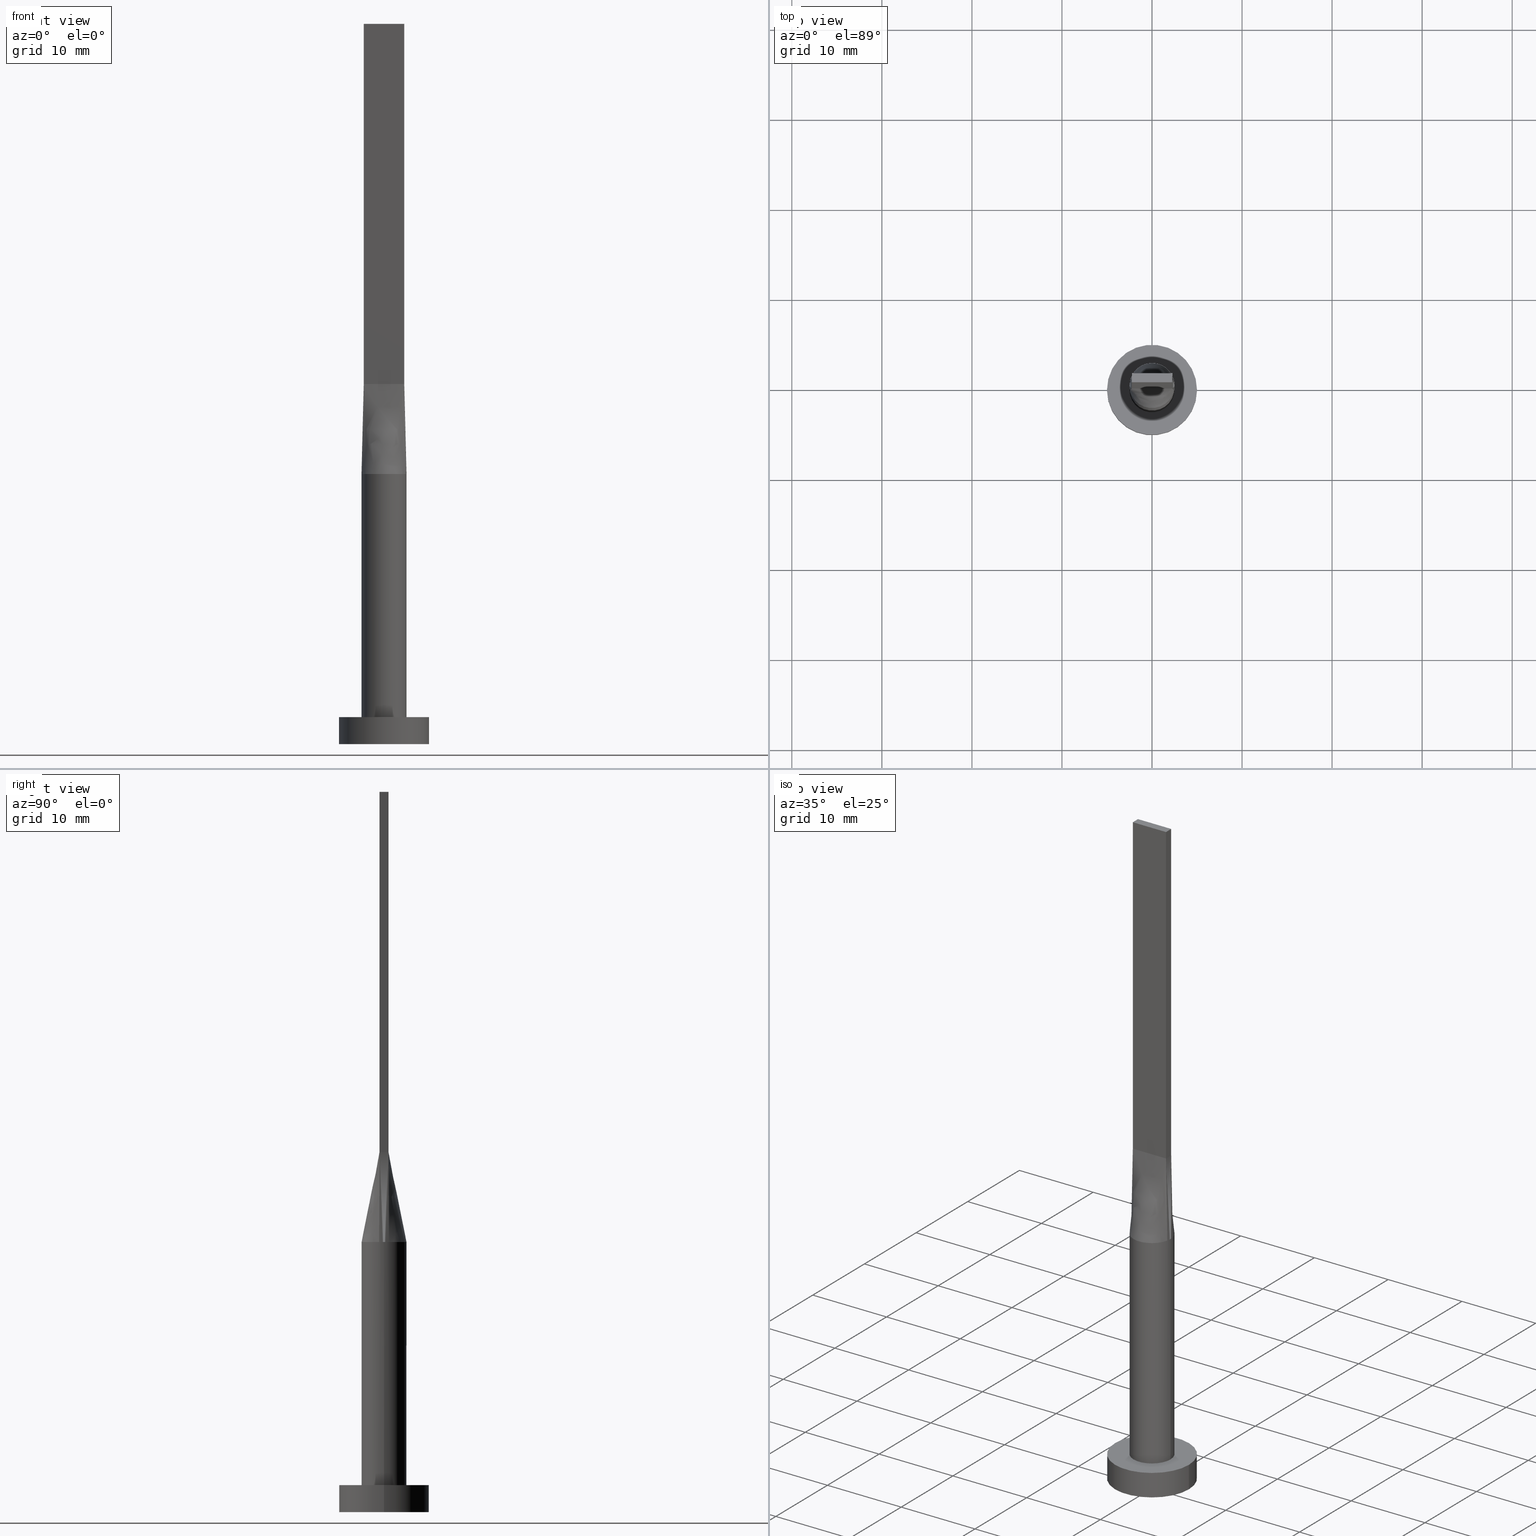
[diagram: canonical four-view strip — front | top / right | iso, engineering-drawing reading convention]
A machine part, canonical four-view strip (front | top / right | iso — engineering-drawing reading convention). The complete STEP part file that produces these views, byte-faithful:
ISO-10303-21;
HEADER;
FILE_DESCRIPTION (( 'STEP AP203' ),
    '1' );
FILE_NAME ('b24c.STEP',
    '2023-02-13T13:17:58',
    ( '' ),
    ( '' ),
    'SwSTEP 2.0',
    'SolidWorks 2019',
    '' );
FILE_SCHEMA (( 'CONFIG_CONTROL_DESIGN' ));
ENDSEC;

DATA;
#1 = ORIENTED_EDGE ( 'NONE', *, *, #549, .F. ) ;
#2 = APPROVAL_STATUS ( 'not_yet_approved' ) ;
#3 = FACE_OUTER_BOUND ( 'NONE', #515, .T. ) ;
#4 = VERTEX_POINT ( 'NONE', #160 ) ;
#5 = DIRECTION ( 'NONE',  ( 1.000000000000000000, 0.000000000000000000, 0.000000000000000000 ) ) ;
#6 = CIRCLE ( 'NONE', #432, 5.000000000000000000 ) ;
#7 = CARTESIAN_POINT ( 'NONE',  ( -2.093723281432891437, 1.388001797188529451, 30.00000000000000000 ) ) ;
#8 = DIRECTION ( 'NONE',  ( 1.000000000000000000, 0.000000000000000000, 0.000000000000000000 ) ) ;
#9 = LINE ( 'NONE', #227, #257 ) ;
#10 = CC_DESIGN_PERSON_AND_ORGANIZATION_ASSIGNMENT ( #574, #223, ( #136 ) ) ;
#11 = CARTESIAN_POINT ( 'NONE',  ( -2.323660390030918510, 0.9543733860570832173, 30.00000000000000000 ) ) ;
#12 = PERSON_AND_ORGANIZATION ( #285, #89 ) ;
#13 = VERTEX_POINT ( 'NONE', #199 ) ;
#14 = CARTESIAN_POINT ( 'NONE',  ( 2.250000000000000000, -0.4999999999999997780, 80.00000000000000000 ) ) ;
#15 = DIRECTION ( 'NONE',  ( 7.228014483236697048E-17, 1.000000000000000000, -0.000000000000000000 ) ) ;
#16 = EDGE_CURVE ( 'NONE', #337, #566, #354, .T. ) ;
#17 = FACE_OUTER_BOUND ( 'NONE', #269, .T. ) ;
#18 = DIRECTION ( 'NONE',  ( 0.000000000000000000, 0.000000000000000000, 1.000000000000000000 ) ) ;
#19 = ORIENTED_EDGE ( 'NONE', *, *, #192, .F. ) ;
#20 = CARTESIAN_POINT ( 'NONE',  ( -2.499291179871646840, -0.1829277781556729043, 30.00000000000000000 ) ) ;
#21 = ORIENTED_EDGE ( 'NONE', *, *, #166, .T. ) ;
#22 = EDGE_CURVE ( 'NONE', #280, #101, #412, .T. ) ;
#23 = VECTOR ( 'NONE', #171, 1000.000000000000000 ) ;
#24 = CARTESIAN_POINT ( 'NONE',  ( 2.323660390030918954, 0.9543733860570833283, 30.00000000000000711 ) ) ;
#25 = CARTESIAN_POINT ( 'NONE',  ( -2.323660390030918066, -0.9543733860570832173, 30.00000000000000711 ) ) ;
#26 = AXIS2_PLACEMENT_3D ( 'NONE', #518, #575, #121 ) ;
#27 = CIRCLE ( 'NONE', #383, 2.500000000000000000 ) ;
#28 = CARTESIAN_POINT ( 'NONE',  ( -2.345233825229940727, 0.5211630722733198162, 35.00000000000000000 ) ) ;
#29 = CARTESIAN_POINT ( 'NONE',  ( 0.000000000000000000, 0.000000000000000000, 3.000000000000000000 ) ) ;
#30 = CARTESIAN_POINT ( 'NONE',  ( -2.093723281432891881, -1.388001797188529007, 30.00000000000000000 ) ) ;
#31 = DIRECTION ( 'NONE',  ( 0.000000000000000000, 0.000000000000000000, 1.000000000000000000 ) ) ;
#32 = VECTOR ( 'NONE', #130, 1000.000000000000000 ) ;
#33 = DIRECTION ( 'NONE',  ( -0.000000000000000000, -0.000000000000000000, -1.000000000000000000 ) ) ;
#34 = EDGE_CURVE ( 'NONE', #195, #454, #550, .T. ) ;
#35 = DIRECTION ( 'NONE',  ( 0.000000000000000000, 0.000000000000000000, 1.000000000000000000 ) ) ;
#36 = CARTESIAN_POINT ( 'NONE',  ( -2.440467650459882343, 0.5423261445466395214, 30.00000000000000000 ) ) ;
#37 = CARTESIAN_POINT ( 'NONE',  ( 0.6674771052374466329, -2.430579781493059865, 29.99999999999999289 ) ) ;
#38 = MANIFOLD_SOLID_BREP ( 'P�idat vysunut�m5', #396 ) ;
#39 = FACE_OUTER_BOUND ( 'NONE', #414, .T. ) ;
#40 = CARTESIAN_POINT ( 'NONE',  ( -2.093723281432891437, 1.388001797188529451, 30.00000000000000000 ) ) ;
#41 = DATE_AND_TIME ( #537, #270 ) ;
#42 = CARTESIAN_POINT ( 'NONE',  ( 2.323660390030918954, 0.9543733860570833283, 30.00000000000000711 ) ) ;
#43 = ADVANCED_FACE ( 'NONE', ( #552 ), #221, .T. ) ;
#44 = CARTESIAN_POINT ( 'NONE',  ( 0.3749999999999998890, -0.4999999999999995559, 39.99999999999999289 ) ) ;
#45 = VECTOR ( 'NONE', #450, 1000.000000000000000 ) ;
#46 = ORIENTED_EDGE ( 'NONE', *, *, #111, .T. ) ;
#47 = PERSON_AND_ORGANIZATION_ROLE ( 'creator' ) ;
#48 = CARTESIAN_POINT ( 'NONE',  ( -0.9375000000000114353, 0.5000000000000002220, 39.99999999999999289 ) ) ;
#49 = SECURITY_CLASSIFICATION_LEVEL ( 'unclassified' ) ;
#50 = DIRECTION ( 'NONE',  ( -0.000000000000000000, -0.000000000000000000, -1.000000000000000000 ) ) ;
#51 = AXIS2_PLACEMENT_3D ( 'NONE', #509, #374, #418 ) ;
#52 = AXIS2_PLACEMENT_3D ( 'NONE', #370, #546, #152 ) ;
#53 = ORIENTED_EDGE ( 'NONE', *, *, #184, .F. ) ;
#54 = DIRECTION ( 'NONE',  ( 1.000000000000000000, 0.000000000000000000, 0.000000000000000000 ) ) ;
#55 = CC_DESIGN_PERSON_AND_ORGANIZATION_ASSIGNMENT ( #80, #75, ( #295 ) ) ;
#56 = DIRECTION ( 'NONE',  ( -0.01904314058352519351, -0.004231809018561117491, 0.9998097071888962795 ) ) ;
#57 = ORIENTED_EDGE ( 'NONE', *, *, #86, .T. ) ;
#58 = LINE ( 'NONE', #231, #399 ) ;
#59 = ORIENTED_EDGE ( 'NONE', *, *, #208, .T. ) ;
#60 = DIRECTION ( 'NONE',  ( 0.000000000000000000, 0.000000000000000000, 1.000000000000000000 ) ) ;
#61 = LOCAL_TIME ( 14, 17, 58.00000000000000000, #517 ) ;
#62 = APPROVAL_ROLE ( '' ) ;
#63 = EDGE_CURVE ( 'NONE', #320, #305, #124, .T. ) ;
#64 = ORIENTED_EDGE ( 'NONE', *, *, #233, .T. ) ;
#65 = CARTESIAN_POINT ( 'NONE',  ( 2.499645589935823420, 5.999196936655281332E-16, 30.00000000000000000 ) ) ;
#66 = ORIENTED_EDGE ( 'NONE', *, *, #361, .F. ) ;
#67 = CARTESIAN_POINT ( 'NONE',  ( -2.479683336734391563, 0.3658555563113465858, 30.00000000000000000 ) ) ;
#68 = ORIENTED_EDGE ( 'NONE', *, *, #279, .T. ) ;
#69 = CC_DESIGN_DATE_AND_TIME_ASSIGNMENT ( #297, #394, ( #421 ) ) ;
#70 = AXIS2_PLACEMENT_3D ( 'NONE', #300, #138, #310 ) ;
#71 = FACE_OUTER_BOUND ( 'NONE', #377, .T. ) ;
#72 = CIRCLE ( 'NONE', #572, 2.500000000000000000 ) ;
#73 = CARTESIAN_POINT ( 'NONE',  ( -2.396350003401058970, -0.7408555563113458087, 30.00000000000000355 ) ) ;
#74 = LINE ( 'NONE', #196, #203 ) ;
#75 = PERSON_AND_ORGANIZATION_ROLE ( 'creator' ) ;
#76 = CARTESIAN_POINT ( 'NONE',  ( 1.874999999999995115, 0.5000000000000002220, 39.99999999999999289 ) ) ;
#77 = VERTEX_POINT ( 'NONE', #127 ) ;
#78 = ORIENTED_EDGE ( 'NONE', *, *, #436, .T. ) ;
#79 = DIRECTION ( 'NONE',  ( 0.000000000000000000, 0.000000000000000000, 1.000000000000000000 ) ) ;
#80 = PERSON_AND_ORGANIZATION ( #285, #89 ) ;
#81 = EDGE_CURVE ( 'NONE', #305, #478, #314, .T. ) ;
#82 = ORIENTED_EDGE ( 'NONE', *, *, #569, .F. ) ;
#83 = CARTESIAN_POINT ( 'NONE',  ( -2.500000000000000000, 0.000000000000000000, 3.000000000000000000 ) ) ;
#84 = VECTOR ( 'NONE', #239, 1000.000000000000000 ) ;
#85 = ORIENTED_EDGE ( 'NONE', *, *, #224, .T. ) ;
#86 = EDGE_CURVE ( 'NONE', #222, #454, #485, .T. ) ;
#87 = CARTESIAN_POINT ( 'NONE',  ( -1.500000000000007327, 0.5000000000000002220, 39.99999999999999289 ) ) ;
#88 = VERTEX_POINT ( 'NONE', #477 ) ;
#89 = ORGANIZATION ( 'NEUR�EN�', 'NEUR�EN�', '' ) ;
#90 = CARTESIAN_POINT ( 'NONE',  ( 1.935644909179608186, 1.608159499248285051, 29.99999999999999645 ) ) ;
#91 = CARTESIAN_POINT ( 'NONE',  ( -2.500000000000000000, 0.000000000000000000, 30.00000000000000000 ) ) ;
#92 = CARTESIAN_POINT ( 'NONE',  ( 0.000000000000000000, 0.000000000000000000, 3.000000000000000000 ) ) ;
#93 = ADVANCED_FACE ( 'NONE', ( #433 ), #533, .T. ) ;
#94 = ORIENTED_EDGE ( 'NONE', *, *, #143, .F. ) ;
#95 = LINE ( 'NONE', #343, #299 ) ;
#96 = CARTESIAN_POINT ( 'NONE',  ( 2.250000000000000000, -0.4999999999999997780, 80.00000000000000000 ) ) ;
#97 =( LENGTH_UNIT ( ) NAMED_UNIT ( * ) SI_UNIT ( .MILLI., .METRE. ) );
#98 = DIRECTION ( 'NONE',  ( 0.000000000000000000, -0.000000000000000000, -1.000000000000000000 ) ) ;
#99 = B_SPLINE_SURFACE_WITH_KNOTS ( 'NONE', 3, 1, ( 
 ( #145, #311 ),
 ( #524, #169 ),
 ( #339, #294 ),
 ( #473, #424 ),
 ( #296, #404 ),
 ( #278, #241 ) ),
 .UNSPECIFIED., .F., .F., .F.,
 ( 4, 2, 4 ),
 ( 2, 2 ),
 ( 0.000000000000000000, 0.5000000000000000000, 1.000000000000000000 ),
 ( 0.000000000000000000, 1.000000000000000000 ),
 .UNSPECIFIED. ) ;
#100 = CARTESIAN_POINT ( 'NONE',  ( 0.000000000000000000, 0.000000000000000000, 0.000000000000000000 ) ) ;
#101 = VERTEX_POINT ( 'NONE', #109 ) ;
#102 = ADVANCED_FACE ( 'NONE', ( #71 ), #245, .T. ) ;
#103 = DIRECTION ( 'NONE',  ( -0.000000000000000000, -0.000000000000000000, -1.000000000000000000 ) ) ;
#104 = CARTESIAN_POINT ( 'NONE',  ( -2.250000000000000000, -0.4999999999999994449, 80.00000000000000000 ) ) ;
#105 = ORIENTED_EDGE ( 'NONE', *, *, #417, .T. ) ;
#106 = CARTESIAN_POINT ( 'NONE',  ( -2.440467650459881899, 0.5423261445466406316, 30.00000000000000000 ) ) ;
#107 = FACE_OUTER_BOUND ( 'NONE', #318, .T. ) ;
#108 = EDGE_LOOP ( 'NONE', ( #407, #179, #82, #243 ) ) ;
#109 = CARTESIAN_POINT ( 'NONE',  ( 2.249999999999999556, 0.5000000000000002220, 40.00000000000000000 ) ) ;
#110 = ORIENTED_EDGE ( 'NONE', *, *, #16, .T. ) ;
#111 = EDGE_CURVE ( 'NONE', #337, #445, #503, .T. ) ;
#112 = PERSON_AND_ORGANIZATION ( #285, #89 ) ;
#113 = ORIENTED_EDGE ( 'NONE', *, *, #330, .F. ) ;
#114 = CARTESIAN_POINT ( 'NONE',  ( 0.3749999999999862332, 0.5000000000000002220, 39.99999999999999289 ) ) ;
#115 = EDGE_LOOP ( 'NONE', ( #105, #85 ) ) ;
#116 = ADVANCED_BREP_SHAPE_REPRESENTATION ( 'b24c', ( #38, #155 ), #364 ) ;
#117 = CARTESIAN_POINT ( 'NONE',  ( -2.249999999999999556, 0.5000000000000002220, 80.00000000000000000 ) ) ;
#118 = VECTOR ( 'NONE', #172, 1000.000000000000000 ) ;
#119 = EDGE_CURVE ( 'NONE', #445, #216, #406, .T. ) ;
#120 = DATE_TIME_ROLE ( 'creation_date' ) ;
#121 = DIRECTION ( 'NONE',  ( 4.336808689942020201E-16, 1.000000000000000000, 0.000000000000000000 ) ) ;
#122 = CARTESIAN_POINT ( 'NONE',  ( 2.250000000000000000, -0.4999999999999997780, 80.00000000000000000 ) ) ;
#123 = APPLICATION_CONTEXT ( 'configuration controlled 3d designs of mechanical parts and assemblies' ) ;
#124 = CIRCLE ( 'NONE', #492, 2.500000000000000000 ) ;
#125 = DIRECTION ( 'NONE',  ( 1.000000000000000000, 0.000000000000000000, 0.000000000000000000 ) ) ;
#126 = LINE ( 'NONE', #298, #32 ) ;
#127 = CARTESIAN_POINT ( 'NONE',  ( -2.250000000000000000, -0.4999999999999994449, 80.00000000000000000 ) ) ;
#128 = ADVANCED_FACE ( 'NONE', ( #107 ), #134, .T. ) ;
#129 = CARTESIAN_POINT ( 'NONE',  ( 0.000000000000000000, 0.000000000000000000, 0.000000000000000000 ) ) ;
#130 = DIRECTION ( 'NONE',  ( -1.000000000000000000, -0.000000000000000000, -0.000000000000000000 ) ) ;
#131 = CARTESIAN_POINT ( 'NONE',  ( 2.093723281432890548, -1.388001797188530340, 29.99999999999999645 ) ) ;
#132 = ORIENTED_EDGE ( 'NONE', *, *, #166, .F. ) ;
#133 = CARTESIAN_POINT ( 'NONE',  ( -0.3342381693191151526, 2.499999999999999556, 30.00000000000000355 ) ) ;
#134 = B_SPLINE_SURFACE_WITH_KNOTS ( 'NONE', 3, 1, ( 
 ( #326, #162 ),
 ( #329, #508 ),
 ( #24, #76 ),
 ( #204, #558 ),
 ( #333, #512 ),
 ( #164, #416 ),
 ( #287, #207 ),
 ( #335, #114 ),
 ( #422, #263 ),
 ( #133, #348 ),
 ( #381, #170 ),
 ( #258, #306 ),
 ( #474, #48 ),
 ( #426, #341 ),
 ( #40, #87 ),
 ( #387, #522 ),
 ( #390, #392 ),
 ( #36, #214 ) ),
 .UNSPECIFIED., .F., .F., .F.,
 ( 4, 2, 2, 2, 2, 2, 2, 2, 4 ),
 ( 2, 2 ),
 ( 0.000000000000000000, 0.1249999999999999722, 0.2500000000000000000, 0.3750000000000000000, 0.5000000000000001110, 0.6250000000000001110, 0.7500000000000000000, 0.8750000000000000000, 1.000000000000000000 ),
 ( 0.000000000000000000, 1.000000000000000000 ),
 .UNSPECIFIED. ) ;
#135 = CARTESIAN_POINT ( 'NONE',  ( 2.396350003401058082, -0.7408555563113468079, 30.00000000000000000 ) ) ;
#136 = PRODUCT_DEFINITION_FORMATION_WITH_SPECIFIED_SOURCE ( 'LIBOVOLN�', '', #140, .NOT_KNOWN. ) ;
#137 = CARTESIAN_POINT ( 'NONE',  ( -1.260416918790968843, 2.182794756967428196, 29.99999999999999289 ) ) ;
#138 = DIRECTION ( 'NONE',  ( 0.000000000000000000, 0.000000000000000000, 1.000000000000000000 ) ) ;
#139 = ORIENTED_EDGE ( 'NONE', *, *, #63, .T. ) ;
#140 = PRODUCT ( 'b24c', 'b24c', '', ( #197 ) ) ;
#141 = CALENDAR_DATE ( 2023, 13, 2 ) ;
#142 = DIRECTION ( 'NONE',  ( 0.000000000000000000, -1.000000000000000000, 0.000000000000000000 ) ) ;
#143 = EDGE_CURVE ( 'NONE', #346, #445, #530, .T. ) ;
#144 = ORIENTED_EDGE ( 'NONE', *, *, #81, .F. ) ;
#145 = CARTESIAN_POINT ( 'NONE',  ( 2.440467650459881899, -0.5423261445466410757, 30.00000000000000000 ) ) ;
#146 = DIRECTION ( 'NONE',  ( 1.000000000000000000, -7.228014483236697048E-17, 0.000000000000000000 ) ) ;
#147 = EDGE_LOOP ( 'NONE', ( #132, #190 ) ) ;
#148 = VECTOR ( 'NONE', #33, 1000.000000000000000 ) ;
#149 = DIRECTION ( 'NONE',  ( -1.000000000000000000, 7.228014483236697048E-17, 0.000000000000000000 ) ) ;
#150 = CC_DESIGN_PERSON_AND_ORGANIZATION_ASSIGNMENT ( #434, #47, ( #136 ) ) ;
#151 = APPLICATION_PROTOCOL_DEFINITION ( 'international standard', 'config_control_design', 1994, #123 ) ;
#152 = DIRECTION ( 'NONE',  ( -1.000000000000000000, 0.000000000000000000, 0.000000000000000000 ) ) ;
#153 = LOCAL_TIME ( 14, 17, 58.00000000000000000, #181 ) ;
#154 = ORIENTED_EDGE ( 'NONE', *, *, #22, .F. ) ;
#155 = AXIS2_PLACEMENT_3D ( 'NONE', #100, #18, #363 ) ;
#156 = CARTESIAN_POINT ( 'NONE',  ( -2.250000000000000000, -0.4999999999999994449, 40.00000000000000000 ) ) ;
#157 = VECTOR ( 'NONE', #56, 1000.000000000000000 ) ;
#158 = DIRECTION ( 'NONE',  ( -4.336808689942017736E-16, 1.000000000000000000, -0.000000000000000000 ) ) ;
#159 = ADVANCED_FACE ( 'NONE', ( #303 ), #484, .F. ) ;
#160 = CARTESIAN_POINT ( 'NONE',  ( 2.500000000000000000, 3.061616997868383141E-16, 3.000000000000000000 ) ) ;
#161 = APPROVAL_DATE_TIME ( #458, #447 ) ;
#162 = CARTESIAN_POINT ( 'NONE',  ( 2.249999999999999556, 0.5000000000000002220, 40.00000000000000000 ) ) ;
#163 = CARTESIAN_POINT ( 'NONE',  ( -1.519400572660313919, -2.006070808634366820, 30.00000000000000355 ) ) ;
#164 = CARTESIAN_POINT ( 'NONE',  ( 1.519400572660313031, 2.006070808634367708, 30.00000000000000000 ) ) ;
#165 = ORIENTED_EDGE ( 'NONE', *, *, #260, .F. ) ;
#166 = EDGE_CURVE ( 'NONE', #454, #195, #455, .T. ) ;
#167 = LINE ( 'NONE', #91, #23 ) ;
#168 = ORIENTED_EDGE ( 'NONE', *, *, #34, .T. ) ;
#169 = CARTESIAN_POINT ( 'NONE',  ( 2.250000000000000000, -0.3333333333333333703, 39.99999999999999289 ) ) ;
#170 = CARTESIAN_POINT ( 'NONE',  ( -0.3750000000000138223, 0.5000000000000002220, 39.99999999999999289 ) ) ;
#171 = DIRECTION ( 'NONE',  ( -0.000000000000000000, -0.000000000000000000, -1.000000000000000000 ) ) ;
#172 = DIRECTION ( 'NONE',  ( -0.000000000000000000, -0.000000000000000000, -1.000000000000000000 ) ) ;
#173 = CC_DESIGN_PERSON_AND_ORGANIZATION_ASSIGNMENT ( #188, #226, ( #421 ) ) ;
#174 = CARTESIAN_POINT ( 'NONE',  ( 2.440467650459881899, -0.5423261445466405206, 30.00000000000000000 ) ) ;
#175 = ORIENTED_EDGE ( 'NONE', *, *, #242, .F. ) ;
#176 = CARTESIAN_POINT ( 'NONE',  ( 0.000000000000000000, 0.000000000000000000, 30.00000000000000000 ) ) ;
#177 = CIRCLE ( 'NONE', #576, 2.500000000000000000 ) ;
#178 = CARTESIAN_POINT ( 'NONE',  ( 0.7499999999999996669, -0.4999999999999995559, 39.99999999999999289 ) ) ;
#179 = ORIENTED_EDGE ( 'NONE', *, *, #208, .F. ) ;
#180 = CARTESIAN_POINT ( 'NONE',  ( 1.499999999999999778, -0.4999999999999997780, 39.99999999999999289 ) ) ;
#181 = COORDINATED_UNIVERSAL_TIME_OFFSET ( 1, 0, .AHEAD. ) ;
#182 = CARTESIAN_POINT ( 'NONE',  ( 1.260416918790968399, -2.182794756967428640, 29.99999999999999645 ) ) ;
#183 = EDGE_LOOP ( 'NONE', ( #498, #468, #168, #288 ) ) ;
#184 = EDGE_CURVE ( 'NONE', #101, #445, #126, .T. ) ;
#185 = PLANE ( 'NONE',  #466 ) ;
#186 = ORIENTED_EDGE ( 'NONE', *, *, #486, .T. ) ;
#187 = PLANE ( 'NONE',  #272 ) ;
#188 = PERSON_AND_ORGANIZATION ( #285, #89 ) ;
#189 = LINE ( 'NONE', #319, #220 ) ;
#190 = ORIENTED_EDGE ( 'NONE', *, *, #34, .F. ) ;
#191 = DESIGN_CONTEXT ( 'detailed design', #123, 'design' ) ;
#192 = EDGE_CURVE ( 'NONE', #478, #337, #444, .T. ) ;
#193 = PRODUCT_DEFINITION_SHAPE ( 'NONE', 'NONE',  #295 ) ;
#194 = ORIENTED_EDGE ( 'NONE', *, *, #242, .T. ) ;
#195 = VERTEX_POINT ( 'NONE', #357 ) ;
#196 = CARTESIAN_POINT ( 'NONE',  ( 2.249999999999999556, 0.5000000000000002220, 40.00000000000000000 ) ) ;
#197 = MECHANICAL_CONTEXT ( 'NONE', #563, 'mechanical' ) ;
#198 = ORIENTED_EDGE ( 'NONE', *, *, #233, .F. ) ;
#199 = CARTESIAN_POINT ( 'NONE',  ( 2.250000000000000000, -0.4999999999999997780, 40.00000000000000000 ) ) ;
#200 = EDGE_CURVE ( 'NONE', #77, #315, #9, .T. ) ;
#201 = APPROVAL_PERSON_ORGANIZATION ( #112, #248, #462 ) ;
#202 = DIRECTION ( 'NONE',  ( 1.000000000000000000, 0.000000000000000000, 0.000000000000000000 ) ) ;
#203 = VECTOR ( 'NONE', #158, 1000.000000000000000 ) ;
#204 = CARTESIAN_POINT ( 'NONE',  ( 2.093723281432890104, 1.388001797188529007, 29.99999999999998934 ) ) ;
#205 = CARTESIAN_POINT ( 'NONE',  ( -1.875000000000000444, -0.4999999999999995559, 40.00000000000000000 ) ) ;
#206 = AXIS2_PLACEMENT_3D ( 'NONE', #229, #35, #291 ) ;
#207 = CARTESIAN_POINT ( 'NONE',  ( 0.7499999999999872324, 0.5000000000000002220, 39.99999999999999289 ) ) ;
#208 = EDGE_CURVE ( 'NONE', #77, #216, #312, .T. ) ;
#209 = ORIENTED_EDGE ( 'NONE', *, *, #456, .F. ) ;
#210 = CARTESIAN_POINT ( 'NONE',  ( 2.345233825229940727, -0.5211630722733201493, 35.00000000000000000 ) ) ;
#211 = CARTESIAN_POINT ( 'NONE',  ( -1.935644909179609297, -1.608159499248284829, 30.00000000000000711 ) ) ;
#212 = CARTESIAN_POINT ( 'NONE',  ( 2.440676307083422980, 0.5423728264510006003, 30.00000000000000000 ) ) ;
#213 = CARTESIAN_POINT ( 'NONE',  ( -2.345233825229941171, -0.5211630722733197052, 35.00000000000000000 ) ) ;
#214 = CARTESIAN_POINT ( 'NONE',  ( -2.249999999999999556, 0.5000000000000002220, 40.00000000000000000 ) ) ;
#215 = CARTESIAN_POINT ( 'NONE',  ( 1.519400572660313031, -2.006070808634367264, 30.00000000000000711 ) ) ;
#216 = VERTEX_POINT ( 'NONE', #395 ) ;
#217 = FACE_OUTER_BOUND ( 'NONE', #488, .T. ) ;
#218 = ADVANCED_FACE ( 'NONE', ( #3 ), #185, .F. ) ;
#219 = DIRECTION ( 'NONE',  ( 0.000000000000000000, 0.000000000000000000, 1.000000000000000000 ) ) ;
#220 = VECTOR ( 'NONE', #103, 1000.000000000000000 ) ;
#221 = B_SPLINE_SURFACE_WITH_KNOTS ( 'NONE', 3, 1, ( 
 ( #282, #156 ),
 ( #73, #246 ),
 ( #25, #205 ),
 ( #30, #560 ),
 ( #211, #327 ),
 ( #163, #334 ),
 ( #513, #251 ),
 ( #342, #523 ),
 ( #581, #423 ),
 ( #579, #259 ),
 ( #37, #44 ),
 ( #182, #178 ),
 ( #215, #355 ),
 ( #531, #385 ),
 ( #131, #180 ),
 ( #304, #570 ),
 ( #135, #535 ),
 ( #174, #526 ) ),
 .UNSPECIFIED., .F., .F., .F.,
 ( 4, 2, 2, 2, 2, 2, 2, 2, 4 ),
 ( 2, 2 ),
 ( 0.000000000000000000, 0.1249999999999999167, 0.2499999999999998335, 0.3749999999999998335, 0.4999999999999998890, 0.6249999999999998890, 0.7499999999999998890, 0.8750000000000000000, 1.000000000000000000 ),
 ( 0.000000000000000000, 1.000000000000000000 ),
 .UNSPECIFIED. ) ;
#222 = VERTEX_POINT ( 'NONE', #489 ) ;
#223 = PERSON_AND_ORGANIZATION_ROLE ( 'design_supplier' ) ;
#224 = EDGE_CURVE ( 'NONE', #520, #222, #6, .T. ) ;
#225 = CC_DESIGN_SECURITY_CLASSIFICATION ( #421, ( #136 ) ) ;
#226 = PERSON_AND_ORGANIZATION_ROLE ( 'classification_officer' ) ;
#227 = CARTESIAN_POINT ( 'NONE',  ( -2.250000000000000000, -0.4999999999999994449, 80.00000000000000000 ) ) ;
#228 = VECTOR ( 'NONE', #369, 1000.000000000000000 ) ;
#229 = CARTESIAN_POINT ( 'NONE',  ( 0.000000000000000000, 0.000000000000000000, 80.00000000000000000 ) ) ;
#230 = LOCAL_TIME ( 14, 17, 58.00000000000000000, #323 ) ;
#231 = CARTESIAN_POINT ( 'NONE',  ( -2.250000000000000000, -0.4999999999999994449, 40.00000000000000000 ) ) ;
#232 = AXIS2_PLACEMENT_3D ( 'NONE', #14, #554, #328 ) ;
#233 = EDGE_CURVE ( 'NONE', #216, #13, #58, .T. ) ;
#234 = DIRECTION ( 'NONE',  ( -4.336808689942017736E-16, 1.000000000000000000, 0.000000000000000000 ) ) ;
#235 = EDGE_LOOP ( 'NONE', ( #64, #375, #571, #59 ) ) ;
#236 = VECTOR ( 'NONE', #275, 1000.000000000000000 ) ;
#237 = CARTESIAN_POINT ( 'NONE',  ( 1.260416918790968843, 2.182794756967427752, 29.99999999999999645 ) ) ;
#238 = ORIENTED_EDGE ( 'NONE', *, *, #559, .T. ) ;
#239 = DIRECTION ( 'NONE',  ( 0.01904314058352523514, -0.004231809018561030755, 0.9998097071888962795 ) ) ;
#240 = ORIENTED_EDGE ( 'NONE', *, *, #63, .F. ) ;
#241 = CARTESIAN_POINT ( 'NONE',  ( 2.249999999999999556, 0.5000000000000002220, 40.00000000000000000 ) ) ;
#242 = EDGE_CURVE ( 'NONE', #478, #101, #547, .T. ) ;
#243 = ORIENTED_EDGE ( 'NONE', *, *, #143, .T. ) ;
#244 = AXIS2_PLACEMENT_3D ( 'NONE', #104, #15, #149 ) ;
#245 = CYLINDRICAL_SURFACE ( 'NONE', #391, 5.000000000000000000 ) ;
#246 = CARTESIAN_POINT ( 'NONE',  ( -2.062500000000000000, -0.4999999999999995559, 40.00000000000000000 ) ) ;
#247 = CARTESIAN_POINT ( 'NONE',  ( -2.249999999999999556, 0.1666666666666672403, 39.99999999999999289 ) ) ;
#248 = APPROVAL ( #286, 'NEUR�EN�' ) ;
#249 = COORDINATED_UNIVERSAL_TIME_OFFSET ( 1, 0, .AHEAD. ) ;
#250 = CARTESIAN_POINT ( 'NONE',  ( 0.000000000000000000, 0.000000000000000000, 3.000000000000000000 ) ) ;
#251 = CARTESIAN_POINT ( 'NONE',  ( -0.7500000000000006661, -0.4999999999999995559, 39.99999999999999289 ) ) ;
#252 = AXIS2_PLACEMENT_3D ( 'NONE', #307, #459, #565 ) ;
#253 = PLANE ( 'NONE',  #232 ) ;
#254 = DIRECTION ( 'NONE',  ( 0.000000000000000000, 0.000000000000000000, 1.000000000000000000 ) ) ;
#255 = FACE_OUTER_BOUND ( 'NONE', #147, .T. ) ;
#256 = DIRECTION ( 'NONE',  ( -0.000000000000000000, -0.000000000000000000, -1.000000000000000000 ) ) ;
#257 = VECTOR ( 'NONE', #146, 1000.000000000000000 ) ;
#258 = CARTESIAN_POINT ( 'NONE',  ( -1.260416918790968843, 2.182794756967428196, 29.99999999999999289 ) ) ;
#259 = CARTESIAN_POINT ( 'NONE',  ( 0.1875000000000000555, -0.4999999999999995559, 39.99999999999999289 ) ) ;
#260 = EDGE_CURVE ( 'NONE', #520, #195, #189, .T. ) ;
#261 = LINE ( 'NONE', #213, #338 ) ;
#262 = SHAPE_DEFINITION_REPRESENTATION ( #193, #116 ) ;
#263 = CARTESIAN_POINT ( 'NONE',  ( 0.1874999999999860112, 0.5000000000000002220, 40.00000000000000000 ) ) ;
#264 = CARTESIAN_POINT ( 'NONE',  ( -2.249999999999999556, 0.5000000000000002220, 80.00000000000000000 ) ) ;
#265 = APPROVAL_ROLE ( '' ) ;
#266 = CARTESIAN_POINT ( 'NONE',  ( -0.6674771052374470770, 2.430579781493059421, 29.99999999999998934 ) ) ;
#267 = APPROVAL_DATE_TIME ( #41, #248 ) ;
#268 = CARTESIAN_POINT ( 'NONE',  ( -2.250000000000000000, -0.4999999999999994449, 80.00000000000000000 ) ) ;
#269 = EDGE_LOOP ( 'NONE', ( #545, #154, #482, #186 ) ) ;
#270 = LOCAL_TIME ( 14, 17, 58.00000000000000000, #249 ) ;
#271 = DIRECTION ( 'NONE',  ( 1.000000000000000000, 0.000000000000000000, 0.000000000000000000 ) ) ;
#272 = AXIS2_PLACEMENT_3D ( 'NONE', #29, #490, #573 ) ;
#273 = EDGE_LOOP ( 'NONE', ( #460, #240, #493, #389, #428, #393 ) ) ;
#274 = ORIENTED_EDGE ( 'NONE', *, *, #559, .F. ) ;
#275 = DIRECTION ( 'NONE',  ( -1.000000000000000000, 0.000000000000000000, 0.000000000000000000 ) ) ;
#276 = FACE_OUTER_BOUND ( 'NONE', #277, .T. ) ;
#277 = EDGE_LOOP ( 'NONE', ( #110, #78, #209, #351, #366 ) ) ;
#278 = CARTESIAN_POINT ( 'NONE',  ( 2.440467650459881899, 0.5423261445466404096, 30.00000000000000000 ) ) ;
#279 = EDGE_CURVE ( 'NONE', #315, #280, #491, .T. ) ;
#280 = VERTEX_POINT ( 'NONE', #402 ) ;
#281 = APPLICATION_PROTOCOL_DEFINITION ( 'international standard', 'config_control_design', 1994, #563 ) ;
#282 = CARTESIAN_POINT ( 'NONE',  ( -2.440467650459882343, -0.5423261445466400765, 30.00000000000000000 ) ) ;
#283 = ADVANCED_FACE ( 'NONE', ( #276 ), #451, .T. ) ;
#284 = UNCERTAINTY_MEASURE_WITH_UNIT (LENGTH_MEASURE( 1.000000000000000082E-05 ), #97, 'distance_accuracy_value', 'NONE');
#285 = PERSON ( 'NEUR�EN�', 'NEUR�EN�', 'NEUR�EN�', ('NEUR�EN�'), ('NEUR�EN�'), ('NEUR�EN�') ) ;
#286 = APPROVAL_STATUS ( 'not_yet_approved' ) ;
#287 = CARTESIAN_POINT ( 'NONE',  ( 1.260416918790968843, 2.182794756967427752, 29.99999999999999645 ) ) ;
#288 = ORIENTED_EDGE ( 'NONE', *, *, #86, .F. ) ;
#289 = CARTESIAN_POINT ( 'NONE',  ( -2.249999999999999556, 0.3333333333333337589, 39.99999999999999289 ) ) ;
#290 = ORIENTED_EDGE ( 'NONE', *, *, #534, .T. ) ;
#291 = DIRECTION ( 'NONE',  ( 1.000000000000000000, 0.000000000000000000, -0.000000000000000000 ) ) ;
#292 = DIRECTION ( 'NONE',  ( 1.000000000000000000, 0.000000000000000000, 0.000000000000000000 ) ) ;
#293 = ORIENTED_EDGE ( 'NONE', *, *, #417, .F. ) ;
#294 = CARTESIAN_POINT ( 'NONE',  ( 2.249999999999999556, -0.1666666666666668795, 39.99999999999999289 ) ) ;
#295 = PRODUCT_DEFINITION ( 'NEZN�M�', '', #136, #191 ) ;
#296 = CARTESIAN_POINT ( 'NONE',  ( 2.479683336734391563, 0.3658555563113463638, 30.00000000000000000 ) ) ;
#297 = DATE_AND_TIME ( #359, #153 ) ;
#298 = CARTESIAN_POINT ( 'NONE',  ( -2.249999999999999556, 0.5000000000000002220, 40.00000000000000000 ) ) ;
#299 = VECTOR ( 'NONE', #529, 1000.000000000000000 ) ;
#300 = CARTESIAN_POINT ( 'NONE',  ( 0.000000000000000000, 0.000000000000000000, 30.00000000000000000 ) ) ;
#301 = ORIENTED_EDGE ( 'NONE', *, *, #16, .F. ) ;
#302 = DIRECTION ( 'NONE',  ( 0.000000000000000000, 0.000000000000000000, 1.000000000000000000 ) ) ;
#303 = FACE_OUTER_BOUND ( 'NONE', #108, .T. ) ;
#304 = CARTESIAN_POINT ( 'NONE',  ( 2.323660390030917178, -0.9543733860570838834, 30.00000000000001066 ) ) ;
#305 = VERTEX_POINT ( 'NONE', #65 ) ;
#306 = CARTESIAN_POINT ( 'NONE',  ( -0.7500000000000124345, 0.5000000000000002220, 39.99999999999999289 ) ) ;
#307 = CARTESIAN_POINT ( 'NONE',  ( 0.000000000000000000, 0.000000000000000000, 30.00000000000000000 ) ) ;
#308 = APPROVAL_DATE_TIME ( #439, #514 ) ;
#309 = CARTESIAN_POINT ( 'NONE',  ( 0.3342381693191150416, 2.499999999999999556, 30.00000000000000355 ) ) ;
#310 = DIRECTION ( 'NONE',  ( 1.000000000000000000, 0.000000000000000000, 0.000000000000000000 ) ) ;
#311 = CARTESIAN_POINT ( 'NONE',  ( 2.250000000000000000, -0.4999999999999997780, 40.00000000000000000 ) ) ;
#312 = LINE ( 'NONE', #268, #45 ) ;
#313 = CC_DESIGN_DATE_AND_TIME_ASSIGNMENT ( #511, #120, ( #295 ) ) ;
#314 = CIRCLE ( 'NONE', #70, 2.500000000000000000 ) ;
#315 = VERTEX_POINT ( 'NONE', #557 ) ;
#316 = CARTESIAN_POINT ( 'NONE',  ( -2.499645589935823420, -1.700711608024726496E-15, 30.00000000000000000 ) ) ;
#317 = CARTESIAN_POINT ( 'NONE',  ( 0.6674771052374470770, 2.430579781493058977, 29.99999999999998224 ) ) ;
#318 = EDGE_LOOP ( 'NONE', ( #539, #46, #53, #175 ) ) ;
#319 = CARTESIAN_POINT ( 'NONE',  ( 5.000000000000000000, 6.123233995736766282E-16, 3.000000000000000000 ) ) ;
#320 = VERTEX_POINT ( 'NONE', #461 ) ;
#321 = ADVANCED_FACE ( 'NONE', ( #17 ), #253, .F. ) ;
#322 = CARTESIAN_POINT ( 'NONE',  ( -2.499291179871646840, 0.1829277781556734317, 30.00000000000000000 ) ) ;
#323 = COORDINATED_UNIVERSAL_TIME_OFFSET ( 1, 0, .AHEAD. ) ;
#324 = ORIENTED_EDGE ( 'NONE', *, *, #184, .T. ) ;
#325 = APPROVAL_STATUS ( 'not_yet_approved' ) ;
#326 = CARTESIAN_POINT ( 'NONE',  ( 2.440467650459881899, 0.5423261445466406316, 30.00000000000000000 ) ) ;
#327 = CARTESIAN_POINT ( 'NONE',  ( -1.312500000000000444, -0.4999999999999995559, 39.99999999999999289 ) ) ;
#328 = DIRECTION ( 'NONE',  ( 4.336808689942017736E-16, -1.000000000000000000, 0.000000000000000000 ) ) ;
#329 = CARTESIAN_POINT ( 'NONE',  ( 2.396350003401058526, 0.7408555563113465858, 30.00000000000000355 ) ) ;
#330 = EDGE_CURVE ( 'NONE', #13, #101, #74, .T. ) ;
#331 = CARTESIAN_POINT ( 'NONE',  ( 2.249999999999999556, 0.5000000000000002220, 80.00000000000000000 ) ) ;
#332 = CALENDAR_DATE ( 2023, 13, 2 ) ;
#333 = CARTESIAN_POINT ( 'NONE',  ( 1.935644909179608186, 1.608159499248285051, 29.99999999999999645 ) ) ;
#334 = CARTESIAN_POINT ( 'NONE',  ( -0.9375000000000006661, -0.4999999999999995559, 39.99999999999999289 ) ) ;
#335 = CARTESIAN_POINT ( 'NONE',  ( 0.6674771052374470770, 2.430579781493058977, 29.99999999999998224 ) ) ;
#336 = PLANE ( 'NONE',  #206 ) ;
#337 = VERTEX_POINT ( 'NONE', #457 ) ;
#338 = VECTOR ( 'NONE', #568, 1000.000000000000000 ) ;
#339 = CARTESIAN_POINT ( 'NONE',  ( 2.499291179871646396, -0.1829277781556736815, 30.00000000000000000 ) ) ;
#340 = EDGE_CURVE ( 'NONE', #320, #13, #347, .T. ) ;
#341 = CARTESIAN_POINT ( 'NONE',  ( -1.312500000000008660, 0.5000000000000002220, 39.99999999999999289 ) ) ;
#342 = CARTESIAN_POINT ( 'NONE',  ( -0.6674771052374477431, -2.430579781493059865, 30.00000000000000000 ) ) ;
#343 = CARTESIAN_POINT ( 'NONE',  ( 2.500000000000000000, 3.061616997868383141E-16, 30.00000000000000000 ) ) ;
#344 = CARTESIAN_POINT ( 'NONE',  ( 0.000000000000000000, 0.000000000000000000, 0.000000000000000000 ) ) ;
#345 = CC_DESIGN_APPROVAL ( #248, ( #136 ) ) ;
#346 = VERTEX_POINT ( 'NONE', #117 ) ;
#347 = LINE ( 'NONE', #210, #527 ) ;
#348 = CARTESIAN_POINT ( 'NONE',  ( -0.1875000000000140443, 0.5000000000000002220, 39.99999999999999289 ) ) ;
#349 = ADVANCED_FACE ( 'NONE', ( #516, #521 ), #187, .T. ) ;
#350 = DIRECTION ( 'NONE',  ( 1.000000000000000000, -4.440892098500626162E-15, 0.000000000000000000 ) ) ;
#351 = ORIENTED_EDGE ( 'NONE', *, *, #119, .F. ) ;
#352 = PERSON_AND_ORGANIZATION ( #285, #89 ) ;
#353 = CARTESIAN_POINT ( 'NONE',  ( 1.519400572660313031, 2.006070808634367708, 30.00000000000000000 ) ) ;
#354 = CIRCLE ( 'NONE', #472, 2.500000000000000000 ) ;
#355 = CARTESIAN_POINT ( 'NONE',  ( 0.9374999999999997780, -0.4999999999999995559, 39.99999999999999289 ) ) ;
#356 = ORIENTED_EDGE ( 'NONE', *, *, #388, .T. ) ;
#357 = CARTESIAN_POINT ( 'NONE',  ( 5.000000000000000000, 6.123233995736766282E-16, 0.000000000000000000 ) ) ;
#358 = DIRECTION ( 'NONE',  ( -1.000000000000000000, 0.000000000000000000, 0.000000000000000000 ) ) ;
#359 = CALENDAR_DATE ( 2023, 13, 2 ) ;
#360 = CARTESIAN_POINT ( 'NONE',  ( -2.440694335308545071, 0.5423767520433731004, 30.00000000000000000 ) ) ;
#361 = EDGE_CURVE ( 'NONE', #566, #372, #167, .T. ) ;
#362 = CARTESIAN_POINT ( 'NONE',  ( 5.000000000000000000, 6.123233995736766282E-16, 3.000000000000000000 ) ) ;
#363 = DIRECTION ( 'NONE',  ( 1.000000000000000000, 0.000000000000000000, 0.000000000000000000 ) ) ;
#364 =( GEOMETRIC_REPRESENTATION_CONTEXT ( 3 ) GLOBAL_UNCERTAINTY_ASSIGNED_CONTEXT ( ( #284 ) ) GLOBAL_UNIT_ASSIGNED_CONTEXT ( ( #97, #561, #465 ) ) REPRESENTATION_CONTEXT ( 'NONE', 'WORKASPACE' ) );
#365 = CC_DESIGN_PERSON_AND_ORGANIZATION_ASSIGNMENT ( #497, #449, ( #140 ) ) ;
#366 = ORIENTED_EDGE ( 'NONE', *, *, #111, .F. ) ;
#367 = CARTESIAN_POINT ( 'NONE',  ( -2.249999999999999556, 0.5000000000000002220, 80.00000000000000000 ) ) ;
#368 = DIRECTION ( 'NONE',  ( -4.336808689942019708E-16, -1.000000000000000000, 0.000000000000000000 ) ) ;
#369 = DIRECTION ( 'NONE',  ( -0.000000000000000000, -0.000000000000000000, -1.000000000000000000 ) ) ;
#370 = CARTESIAN_POINT ( 'NONE',  ( 0.000000000000000000, 0.000000000000000000, 30.00000000000000000 ) ) ;
#371 = CARTESIAN_POINT ( 'NONE',  ( -2.250000000000000000, -0.4999999999999993339, 40.00000000000000000 ) ) ;
#372 = VERTEX_POINT ( 'NONE', #83 ) ;
#373 = CARTESIAN_POINT ( 'NONE',  ( -2.479683336734392007, -0.3658555563113460307, 30.00000000000000000 ) ) ;
#374 = DIRECTION ( 'NONE',  ( 0.000000000000000000, 0.000000000000000000, 1.000000000000000000 ) ) ;
#375 = ORIENTED_EDGE ( 'NONE', *, *, #486, .F. ) ;
#376 = DIRECTION ( 'NONE',  ( -0.01904314058352514841, 0.004231809018561172135, 0.9998097071888962795 ) ) ;
#377 = EDGE_LOOP ( 'NONE', ( #165, #293, #57, #21 ) ) ;
#378 = EDGE_CURVE ( 'NONE', #88, #320, #177, .T. ) ;
#379 = LINE ( 'NONE', #122, #483 ) ;
#380 = CALENDAR_DATE ( 2023, 13, 2 ) ;
#381 = CARTESIAN_POINT ( 'NONE',  ( -0.6674771052374470770, 2.430579781493059421, 29.99999999999998934 ) ) ;
#382 = VECTOR ( 'NONE', #368, 1000.000000000000000 ) ;
#383 = AXIS2_PLACEMENT_3D ( 'NONE', #476, #31, #125 ) ;
#384 = DIRECTION ( 'NONE',  ( 0.000000000000000000, 0.000000000000000000, 1.000000000000000000 ) ) ;
#385 = CARTESIAN_POINT ( 'NONE',  ( 1.312499999999999778, -0.4999999999999996669, 39.99999999999999289 ) ) ;
#386 = CARTESIAN_POINT ( 'NONE',  ( -2.249999999999999556, 0.5000000000000002220, 40.00000000000000000 ) ) ;
#387 = CARTESIAN_POINT ( 'NONE',  ( -2.323660390030918510, 0.9543733860570832173, 30.00000000000000000 ) ) ;
#388 = EDGE_CURVE ( 'NONE', #305, #4, #95, .T. ) ;
#389 = ORIENTED_EDGE ( 'NONE', *, *, #436, .F. ) ;
#390 = CARTESIAN_POINT ( 'NONE',  ( -2.396350003401058082, 0.7408555563113466969, 30.00000000000000000 ) ) ;
#391 = AXIS2_PLACEMENT_3D ( 'NONE', #250, #555, #463 ) ;
#392 = CARTESIAN_POINT ( 'NONE',  ( -2.062500000000001776, 0.5000000000000002220, 39.99999999999999289 ) ) ;
#393 = ORIENTED_EDGE ( 'NONE', *, *, #549, .T. ) ;
#394 = DATE_TIME_ROLE ( 'classification_date' ) ;
#395 = CARTESIAN_POINT ( 'NONE',  ( -2.250000000000000000, -0.4999999999999994449, 40.00000000000000000 ) ) ;
#396 = CLOSED_SHELL ( 'NONE', ( #93, #425, #102, #349, #398, #505, #43, #495, #283, #128, #218, #159, #525, #321, #411 ) ) ;
#397 = DIRECTION ( 'NONE',  ( 1.000000000000000000, 0.000000000000000000, -0.000000000000000000 ) ) ;
#398 = ADVANCED_FACE ( 'NONE', ( #255 ), #564, .F. ) ;
#399 = VECTOR ( 'NONE', #400, 1000.000000000000000 ) ;
#400 = DIRECTION ( 'NONE',  ( 1.000000000000000000, -7.228014483236697048E-17, 0.000000000000000000 ) ) ;
#401 = FACE_OUTER_BOUND ( 'NONE', #235, .T. ) ;
#402 = CARTESIAN_POINT ( 'NONE',  ( 2.249999999999999556, 0.5000000000000002220, 80.00000000000000000 ) ) ;
#403 = ORIENTED_EDGE ( 'NONE', *, *, #340, .F. ) ;
#404 = CARTESIAN_POINT ( 'NONE',  ( 2.249999999999999556, 0.3333333333333332593, 39.99999999999999289 ) ) ;
#405 = AXIS2_PLACEMENT_3D ( 'NONE', #129, #302, #397 ) ;
#406 = LINE ( 'NONE', #551, #382 ) ;
#407 = ORIENTED_EDGE ( 'NONE', *, *, #119, .T. ) ;
#408 = FACE_OUTER_BOUND ( 'NONE', #273, .T. ) ;
#409 = LOCAL_TIME ( 14, 17, 58.00000000000000000, #479 ) ;
#410 = CARTESIAN_POINT ( 'NONE',  ( 0.000000000000000000, 0.000000000000000000, 30.00000000000000000 ) ) ;
#411 = ADVANCED_FACE ( 'NONE', ( #217 ), #336, .T. ) ;
#412 = LINE ( 'NONE', #331, #228 ) ;
#413 = CARTESIAN_POINT ( 'NONE',  ( -2.249999999999999556, 0.5000000000000002220, 40.00000000000000000 ) ) ;
#414 = EDGE_LOOP ( 'NONE', ( #139, #471, #194, #113, #403 ) ) ;
#415 = DIRECTION ( 'NONE',  ( 1.000000000000000000, 0.000000000000000000, 0.000000000000000000 ) ) ;
#416 = CARTESIAN_POINT ( 'NONE',  ( 0.9374999999999878986, 0.5000000000000002220, 39.99999999999999289 ) ) ;
#417 = EDGE_CURVE ( 'NONE', #222, #520, #519, .T. ) ;
#418 = DIRECTION ( 'NONE',  ( 1.000000000000000000, 0.000000000000000000, 0.000000000000000000 ) ) ;
#419 = CIRCLE ( 'NONE', #562, 2.500000000000000000 ) ;
#420 = CARTESIAN_POINT ( 'NONE',  ( 0.000000000000000000, 0.000000000000000000, 3.000000000000000000 ) ) ;
#421 = SECURITY_CLASSIFICATION ( '', '', #49 ) ;
#422 = CARTESIAN_POINT ( 'NONE',  ( 0.3342381693191150416, 2.499999999999999556, 30.00000000000000355 ) ) ;
#423 = CARTESIAN_POINT ( 'NONE',  ( -0.1874999999999999445, -0.4999999999999995559, 39.99999999999999289 ) ) ;
#424 = CARTESIAN_POINT ( 'NONE',  ( 2.249999999999999556, 0.1666666666666664354, 39.99999999999999289 ) ) ;
#425 = ADVANCED_FACE ( 'NONE', ( #438 ), #567, .T. ) ;
#426 = CARTESIAN_POINT ( 'NONE',  ( -1.935644909179609297, 1.608159499248285718, 30.00000000000001066 ) ) ;
#427 = CC_DESIGN_APPROVAL ( #514, ( #421 ) ) ;
#428 = ORIENTED_EDGE ( 'NONE', *, *, #361, .T. ) ;
#429 = CARTESIAN_POINT ( 'NONE',  ( 2.396350003401058526, 0.7408555563113465858, 30.00000000000000355 ) ) ;
#430 = DIRECTION ( 'NONE',  ( 0.000000000000000000, 0.000000000000000000, 1.000000000000000000 ) ) ;
#431 = ORIENTED_EDGE ( 'NONE', *, *, #200, .T. ) ;
#432 = AXIS2_PLACEMENT_3D ( 'NONE', #92, #443, #271 ) ;
#433 = FACE_OUTER_BOUND ( 'NONE', #437, .T. ) ;
#434 = PERSON_AND_ORGANIZATION ( #285, #89 ) ;
#435 = CARTESIAN_POINT ( 'NONE',  ( -1.519400572660313253, 2.006070808634367264, 30.00000000000001421 ) ) ;
#436 = EDGE_CURVE ( 'NONE', #566, #88, #27, .T. ) ;
#437 = EDGE_LOOP ( 'NONE', ( #144, #356, #290, #66, #301, #19 ) ) ;
#438 = FACE_OUTER_BOUND ( 'NONE', #183, .T. ) ;
#439 = DATE_AND_TIME ( #141, #409 ) ;
#440 = APPROVAL_PERSON_ORGANIZATION ( #12, #447, #62 ) ;
#441 = ORIENTED_EDGE ( 'NONE', *, *, #456, .T. ) ;
#442 = PLANE ( 'NONE',  #244 ) ;
#443 = DIRECTION ( 'NONE',  ( 0.000000000000000000, 0.000000000000000000, 1.000000000000000000 ) ) ;
#444 = B_SPLINE_CURVE_WITH_KNOTS ( 'NONE', 3,
 ( #470, #429, #42, #578, #90, #353, #237, #317, #309, #448, #266, #137, #435, #541, #7, #11, #496, #360 ),
 .UNSPECIFIED., .F., .F.,
 ( 4, 2, 2, 2, 2, 2, 2, 2, 4 ),
 ( 0.000000000000000000, 0.1249999999999999722, 0.2500000000000000000, 0.3750000000000000000, 0.5000000000000001110, 0.6250000000000001110, 0.7500000000000000000, 0.8750000000000000000, 1.000000000000000000 ),
 .UNSPECIFIED. ) ;
#445 = VERTEX_POINT ( 'NONE', #386 ) ;
#446 = CARTESIAN_POINT ( 'NONE',  ( 0.000000000000000000, 0.000000000000000000, 3.000000000000000000 ) ) ;
#447 = APPROVAL ( #325, 'NEUR�EN�' ) ;
#448 = CARTESIAN_POINT ( 'NONE',  ( -0.3342381693191151526, 2.499999999999999556, 30.00000000000000355 ) ) ;
#449 = PERSON_AND_ORGANIZATION_ROLE ( 'design_owner' ) ;
#450 = DIRECTION ( 'NONE',  ( -0.000000000000000000, -0.000000000000000000, -1.000000000000000000 ) ) ;
#451 = B_SPLINE_SURFACE_WITH_KNOTS ( 'NONE', 3, 1, ( 
 ( #106, #413 ),
 ( #67, #289 ),
 ( #322, #247 ),
 ( #20, #453 ),
 ( #373, #467 ),
 ( #510, #371 ) ),
 .UNSPECIFIED., .F., .F., .F.,
 ( 4, 2, 4 ),
 ( 2, 2 ),
 ( 0.000000000000000000, 0.5000000000000000000, 1.000000000000000000 ),
 ( 0.000000000000000000, 1.000000000000000000 ),
 .UNSPECIFIED. ) ;
#452 = CARTESIAN_POINT ( 'NONE',  ( 2.249999999999999556, 0.5000000000000002220, 80.00000000000000000 ) ) ;
#453 = CARTESIAN_POINT ( 'NONE',  ( -2.249999999999999556, -0.1666666666666659358, 39.99999999999999289 ) ) ;
#454 = VERTEX_POINT ( 'NONE', #540 ) ;
#455 = CIRCLE ( 'NONE', #580, 5.000000000000000000 ) ;
#456 = EDGE_CURVE ( 'NONE', #216, #88, #261, .T. ) ;
#457 = CARTESIAN_POINT ( 'NONE',  ( -2.440694335308545071, 0.5423767520433731004, 30.00000000000000000 ) ) ;
#458 = DATE_AND_TIME ( #380, #230 ) ;
#459 = DIRECTION ( 'NONE',  ( -0.000000000000000000, -0.000000000000000000, -1.000000000000000000 ) ) ;
#460 = ORIENTED_EDGE ( 'NONE', *, *, #388, .F. ) ;
#461 = CARTESIAN_POINT ( 'NONE',  ( 2.440706242928429415, -0.5423794613208688942, 30.00000000000000000 ) ) ;
#462 = APPROVAL_ROLE ( '' ) ;
#463 = DIRECTION ( 'NONE',  ( -1.000000000000000000, 0.000000000000000000, 0.000000000000000000 ) ) ;
#464 = EDGE_LOOP ( 'NONE', ( #1, #548 ) ) ;
#465 =( NAMED_UNIT ( * ) SI_UNIT ( $, .STERADIAN. ) SOLID_ANGLE_UNIT ( ) );
#466 = AXIS2_PLACEMENT_3D ( 'NONE', #538, #142, #98 ) ;
#467 = CARTESIAN_POINT ( 'NONE',  ( -2.250000000000000000, -0.3333333333333325932, 39.99999999999999289 ) ) ;
#468 = ORIENTED_EDGE ( 'NONE', *, *, #260, .T. ) ;
#469 = CARTESIAN_POINT ( 'NONE',  ( 0.000000000000000000, 0.000000000000000000, 3.000000000000000000 ) ) ;
#470 = CARTESIAN_POINT ( 'NONE',  ( 2.440676307083422980, 0.5423728264510006003, 30.00000000000000000 ) ) ;
#471 = ORIENTED_EDGE ( 'NONE', *, *, #81, .T. ) ;
#472 = AXIS2_PLACEMENT_3D ( 'NONE', #410, #254, #202 ) ;
#473 = CARTESIAN_POINT ( 'NONE',  ( 2.499291179871646396, 0.1829277781556730154, 30.00000000000000000 ) ) ;
#474 = CARTESIAN_POINT ( 'NONE',  ( -1.519400572660313253, 2.006070808634367264, 30.00000000000001421 ) ) ;
#475 = VECTOR ( 'NONE', #234, 1000.000000000000000 ) ;
#476 = CARTESIAN_POINT ( 'NONE',  ( 0.000000000000000000, 0.000000000000000000, 30.00000000000000000 ) ) ;
#477 = CARTESIAN_POINT ( 'NONE',  ( -2.440688158044365785, -0.5423755258804862089, 30.00000000000000000 ) ) ;
#478 = VERTEX_POINT ( 'NONE', #212 ) ;
#479 = COORDINATED_UNIVERSAL_TIME_OFFSET ( 1, 0, .AHEAD. ) ;
#480 = APPROVAL_PERSON_ORGANIZATION ( #352, #514, #265 ) ;
#481 = CARTESIAN_POINT ( 'NONE',  ( 0.000000000000000000, 0.000000000000000000, 30.00000000000000000 ) ) ;
#482 = ORIENTED_EDGE ( 'NONE', *, *, #279, .F. ) ;
#483 = VECTOR ( 'NONE', #256, 1000.000000000000000 ) ;
#484 = PLANE ( 'NONE',  #26 ) ;
#485 = LINE ( 'NONE', #487, #148 ) ;
#486 = EDGE_CURVE ( 'NONE', #315, #13, #379, .T. ) ;
#487 = CARTESIAN_POINT ( 'NONE',  ( -5.000000000000000000, 0.000000000000000000, 3.000000000000000000 ) ) ;
#488 = EDGE_LOOP ( 'NONE', ( #238, #506, #431, #68 ) ) ;
#489 = CARTESIAN_POINT ( 'NONE',  ( -5.000000000000000000, 0.000000000000000000, 3.000000000000000000 ) ) ;
#490 = DIRECTION ( 'NONE',  ( 0.000000000000000000, 0.000000000000000000, 1.000000000000000000 ) ) ;
#491 = LINE ( 'NONE', #96, #475 ) ;
#492 = AXIS2_PLACEMENT_3D ( 'NONE', #481, #430, #350 ) ;
#493 = ORIENTED_EDGE ( 'NONE', *, *, #378, .F. ) ;
#494 = DIRECTION ( 'NONE',  ( -4.336808689942019708E-16, -1.000000000000000000, 0.000000000000000000 ) ) ;
#495 = ADVANCED_FACE ( 'NONE', ( #39 ), #99, .T. ) ;
#496 = CARTESIAN_POINT ( 'NONE',  ( -2.396350003401058082, 0.7408555563113466969, 30.00000000000000000 ) ) ;
#497 = PERSON_AND_ORGANIZATION ( #285, #89 ) ;
#498 = ORIENTED_EDGE ( 'NONE', *, *, #224, .F. ) ;
#499 = LINE ( 'NONE', #452, #236 ) ;
#500 = AXIS2_PLACEMENT_3D ( 'NONE', #420, #50, #358 ) ;
#501 = CARTESIAN_POINT ( 'NONE',  ( 2.345233825229940283, 0.5211630722733202603, 35.00000000000000000 ) ) ;
#502 = DIRECTION ( 'NONE',  ( 0.000000000000000000, 0.000000000000000000, 1.000000000000000000 ) ) ;
#503 = LINE ( 'NONE', #28, #84 ) ;
#504 = CC_DESIGN_APPROVAL ( #447, ( #295 ) ) ;
#505 = ADVANCED_FACE ( 'NONE', ( #408 ), #507, .T. ) ;
#506 = ORIENTED_EDGE ( 'NONE', *, *, #569, .T. ) ;
#507 = CYLINDRICAL_SURFACE ( 'NONE', #52, 2.500000000000000000 ) ;
#508 = CARTESIAN_POINT ( 'NONE',  ( 2.062499999999996891, 0.5000000000000002220, 39.99999999999999289 ) ) ;
#509 = CARTESIAN_POINT ( 'NONE',  ( 0.000000000000000000, 0.000000000000000000, 0.000000000000000000 ) ) ;
#510 = CARTESIAN_POINT ( 'NONE',  ( -2.440467650459882343, -0.5423261445466400765, 30.00000000000000000 ) ) ;
#511 = DATE_AND_TIME ( #332, #61 ) ;
#512 = CARTESIAN_POINT ( 'NONE',  ( 1.312499999999990230, 0.5000000000000002220, 39.99999999999999289 ) ) ;
#513 = CARTESIAN_POINT ( 'NONE',  ( -1.260416918790969509, -2.182794756967427752, 29.99999999999999645 ) ) ;
#514 = APPROVAL ( #2, 'NEUR�EN�' ) ;
#515 = EDGE_LOOP ( 'NONE', ( #324, #94, #274, #528 ) ) ;
#516 = FACE_BOUND ( 'NONE', #464, .T. ) ;
#517 = COORDINATED_UNIVERSAL_TIME_OFFSET ( 1, 0, .AHEAD. ) ;
#518 = CARTESIAN_POINT ( 'NONE',  ( -2.249999999999999556, 0.5000000000000002220, 80.00000000000000000 ) ) ;
#519 = CIRCLE ( 'NONE', #532, 5.000000000000000000 ) ;
#520 = VERTEX_POINT ( 'NONE', #362 ) ;
#521 = FACE_OUTER_BOUND ( 'NONE', #115, .T. ) ;
#522 = CARTESIAN_POINT ( 'NONE',  ( -1.875000000000003775, 0.5000000000000002220, 39.99999999999999289 ) ) ;
#523 = CARTESIAN_POINT ( 'NONE',  ( -0.3750000000000002220, -0.4999999999999995559, 39.99999999999999289 ) ) ;
#524 = CARTESIAN_POINT ( 'NONE',  ( 2.479683336734391563, -0.3658555563113470299, 30.00000000000000000 ) ) ;
#525 = ADVANCED_FACE ( 'NONE', ( #401 ), #442, .F. ) ;
#526 = CARTESIAN_POINT ( 'NONE',  ( 2.250000000000000000, -0.4999999999999997780, 40.00000000000000000 ) ) ;
#527 = VECTOR ( 'NONE', #376, 1000.000000000000000 ) ;
#528 = ORIENTED_EDGE ( 'NONE', *, *, #22, .T. ) ;
#529 = DIRECTION ( 'NONE',  ( -0.000000000000000000, -0.000000000000000000, -1.000000000000000000 ) ) ;
#530 = LINE ( 'NONE', #264, #118 ) ;
#531 = CARTESIAN_POINT ( 'NONE',  ( 1.935644909179608852, -1.608159499248284829, 30.00000000000000711 ) ) ;
#532 = AXIS2_PLACEMENT_3D ( 'NONE', #469, #384, #5 ) ;
#533 = CYLINDRICAL_SURFACE ( 'NONE', #252, 2.500000000000000000 ) ;
#534 = EDGE_CURVE ( 'NONE', #4, #372, #419, .T. ) ;
#535 = CARTESIAN_POINT ( 'NONE',  ( 2.062499999999999556, -0.4999999999999997780, 39.99999999999999289 ) ) ;
#536 = ORIENTED_EDGE ( 'NONE', *, *, #340, .T. ) ;
#537 = CALENDAR_DATE ( 2023, 13, 2 ) ;
#538 = CARTESIAN_POINT ( 'NONE',  ( 2.249999999999999556, 0.5000000000000002220, 80.00000000000000000 ) ) ;
#539 = ORIENTED_EDGE ( 'NONE', *, *, #192, .T. ) ;
#540 = CARTESIAN_POINT ( 'NONE',  ( -5.000000000000000000, 0.000000000000000000, 0.000000000000000000 ) ) ;
#541 = CARTESIAN_POINT ( 'NONE',  ( -1.935644909179609297, 1.608159499248285718, 30.00000000000001066 ) ) ;
#542 = PRODUCT_RELATED_PRODUCT_CATEGORY ( 'detail', '', ( #140 ) ) ;
#543 = LINE ( 'NONE', #367, #544 ) ;
#544 = VECTOR ( 'NONE', #494, 1000.000000000000000 ) ;
#545 = ORIENTED_EDGE ( 'NONE', *, *, #330, .T. ) ;
#546 = DIRECTION ( 'NONE',  ( -0.000000000000000000, -0.000000000000000000, -1.000000000000000000 ) ) ;
#547 = LINE ( 'NONE', #501, #157 ) ;
#548 = ORIENTED_EDGE ( 'NONE', *, *, #534, .F. ) ;
#549 = EDGE_CURVE ( 'NONE', #372, #4, #72, .T. ) ;
#550 = CIRCLE ( 'NONE', #51, 5.000000000000000000 ) ;
#551 = CARTESIAN_POINT ( 'NONE',  ( -2.249999999999999556, 0.5000000000000002220, 40.00000000000000000 ) ) ;
#552 = FACE_OUTER_BOUND ( 'NONE', #577, .T. ) ;
#553 = CARTESIAN_POINT ( 'NONE',  ( 0.000000000000000000, 0.000000000000000000, 3.000000000000000000 ) ) ;
#554 = DIRECTION ( 'NONE',  ( -1.000000000000000000, -4.336808689942017736E-16, 0.000000000000000000 ) ) ;
#555 = DIRECTION ( 'NONE',  ( -0.000000000000000000, -0.000000000000000000, -1.000000000000000000 ) ) ;
#556 = ORIENTED_EDGE ( 'NONE', *, *, #378, .T. ) ;
#557 = CARTESIAN_POINT ( 'NONE',  ( 2.250000000000000000, -0.4999999999999997780, 80.00000000000000000 ) ) ;
#558 = CARTESIAN_POINT ( 'NONE',  ( 1.499999999999991784, 0.5000000000000002220, 39.99999999999999289 ) ) ;
#559 = EDGE_CURVE ( 'NONE', #280, #346, #499, .T. ) ;
#560 = CARTESIAN_POINT ( 'NONE',  ( -1.500000000000000444, -0.4999999999999995559, 39.99999999999999289 ) ) ;
#561 =( NAMED_UNIT ( * ) PLANE_ANGLE_UNIT ( ) SI_UNIT ( $, .RADIAN. ) );
#562 = AXIS2_PLACEMENT_3D ( 'NONE', #446, #502, #54 ) ;
#563 = APPLICATION_CONTEXT ( 'configuration controlled 3d designs of mechanical parts and assemblies' ) ;
#564 = PLANE ( 'NONE',  #405 ) ;
#565 = DIRECTION ( 'NONE',  ( -1.000000000000000000, 0.000000000000000000, 0.000000000000000000 ) ) ;
#566 = VERTEX_POINT ( 'NONE', #316 ) ;
#567 = CYLINDRICAL_SURFACE ( 'NONE', #500, 5.000000000000000000 ) ;
#568 = DIRECTION ( 'NONE',  ( -0.01904314058352519351, -0.004231809018561160859, -0.9998097071888962795 ) ) ;
#569 = EDGE_CURVE ( 'NONE', #346, #77, #543, .T. ) ;
#570 = CARTESIAN_POINT ( 'NONE',  ( 1.875000000000000000, -0.4999999999999997780, 39.99999999999999289 ) ) ;
#571 = ORIENTED_EDGE ( 'NONE', *, *, #200, .F. ) ;
#572 = AXIS2_PLACEMENT_3D ( 'NONE', #553, #60, #8 ) ;
#573 = DIRECTION ( 'NONE',  ( 1.000000000000000000, 0.000000000000000000, -0.000000000000000000 ) ) ;
#574 = PERSON_AND_ORGANIZATION ( #285, #89 ) ;
#575 = DIRECTION ( 'NONE',  ( 1.000000000000000000, -4.336808689942020201E-16, 0.000000000000000000 ) ) ;
#576 = AXIS2_PLACEMENT_3D ( 'NONE', #176, #79, #415 ) ;
#577 = EDGE_LOOP ( 'NONE', ( #556, #536, #198, #441 ) ) ;
#578 = CARTESIAN_POINT ( 'NONE',  ( 2.093723281432890104, 1.388001797188529007, 29.99999999999998934 ) ) ;
#579 = CARTESIAN_POINT ( 'NONE',  ( 0.3342381693191144310, -2.500000000000000444, 30.00000000000000355 ) ) ;
#580 = AXIS2_PLACEMENT_3D ( 'NONE', #344, #219, #292 ) ;
#581 = CARTESIAN_POINT ( 'NONE',  ( -0.3342381693191159853, -2.499999999999999556, 30.00000000000000711 ) ) ;
ENDSEC;
END-ISO-10303-21;
